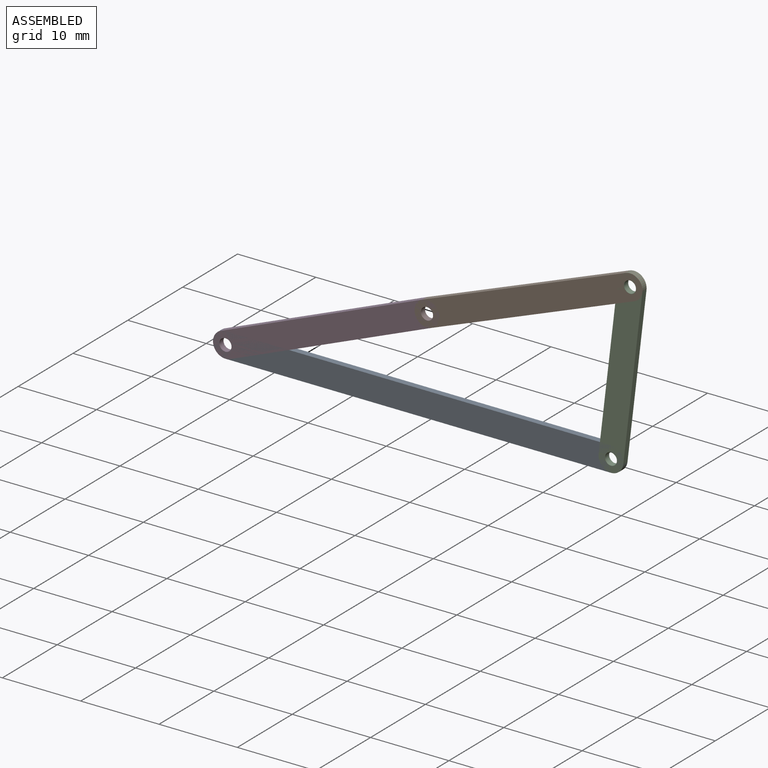
[diagram: assembled view]
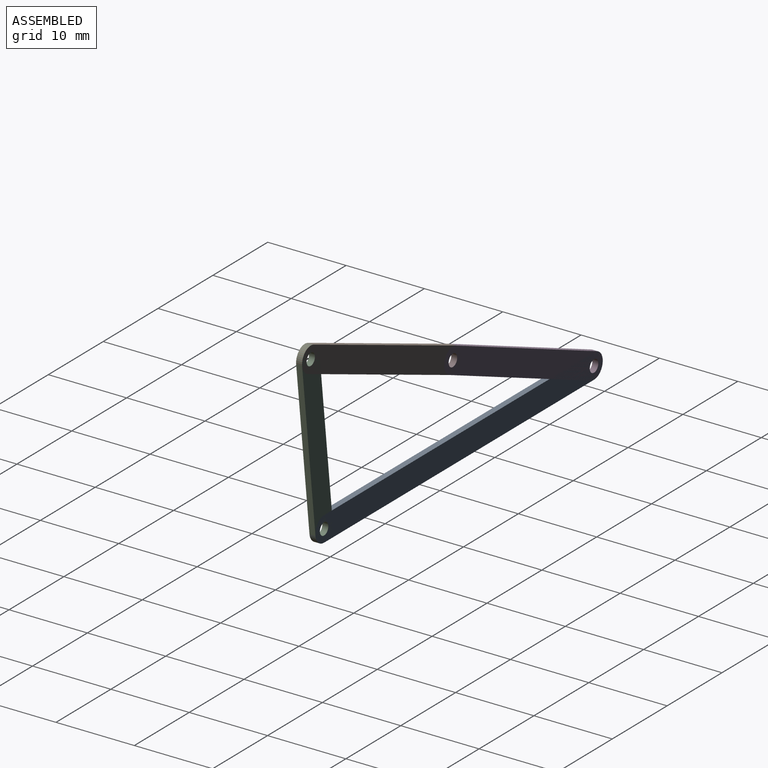
[diagram: assembled view, second angle]
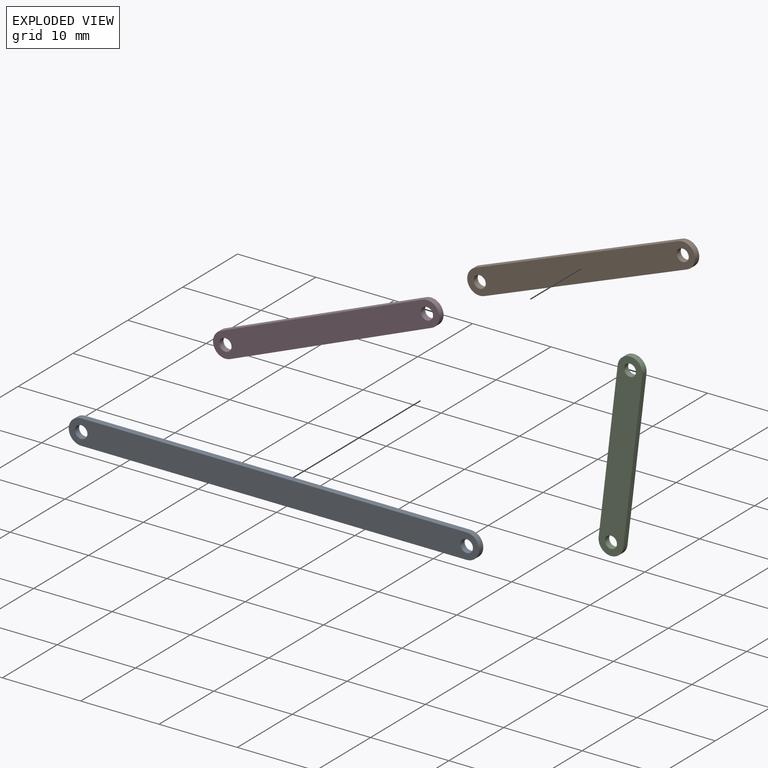
[diagram: exploded view]
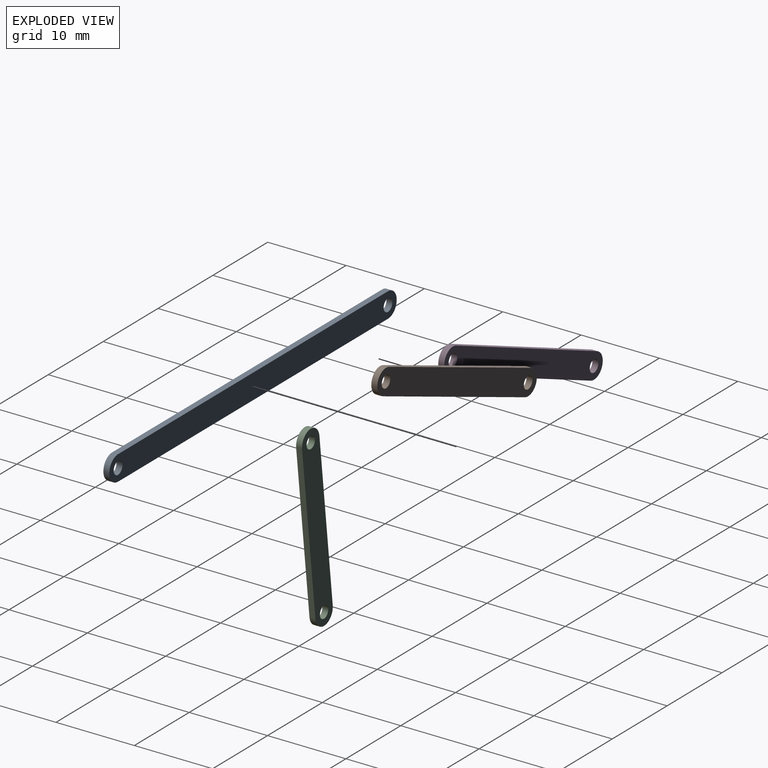
[diagram: exploded view, second angle]
ASSEMBLY  parts=4 mates=4
PART A: 8 faces, bbox 3.2x0.8x52.4 mm
  f0: cylinder r=1.59mm len=3.18mm, axis (0,1,0), area 3.8mm2, adj f1,f5,f6,f7
  f1: plane 49.21x0.76mm, normal (-1,0,0), area 37.5mm2, adj f0,f2,f6,f7
  f2: cylinder r=1.59mm len=3.18mm, axis (0,1,0), area 3.8mm2, adj f1,f5,f6,f7
  f3: cylinder r=0.79mm len=1.59mm, axis (0,1,0), area 3.8mm2, adj f6,f7
  f4: cylinder r=0.79mm len=1.59mm, axis (0,1,0), area 3.8mm2, adj f6,f7
  f5: plane 49.21x0.76mm, normal (1,0,0), area 37.5mm2, adj f0,f2,f6,f7
  f6: plane 52.39x3.18mm, normal (0,-1,0), area 160.2mm2, adj f0,f1,f2,f3,f4,f5
  f7: plane 52.39x3.18mm, normal (0,1,0), area 160.2mm2, adj f0,f1,f2,f3,f4,f5
PART B: 8 faces, bbox 3.2x0.8x31 mm
  f0: cylinder r=1.59mm len=3.18mm, axis (0,1,0), area 3.8mm2, adj f1,f5,f6,f7
  f1: plane 27.78x0.76mm, normal (-1,0,0), area 21.2mm2, adj f0,f2,f6,f7
  f2: cylinder r=1.59mm len=3.18mm, axis (0,1,0), area 3.8mm2, adj f1,f5,f6,f7
  f3: cylinder r=0.78mm len=1.56mm, axis (0,1,0), area 3.7mm2, adj f6,f7
  f4: cylinder r=0.78mm len=1.56mm, axis (0,1,0), area 3.7mm2, adj f6,f7
  f5: plane 27.78x0.76mm, normal (1,0,0), area 21.2mm2, adj f0,f2,f6,f7
  f6: plane 30.96x3.18mm, normal (0,-1,0), area 92.3mm2, adj f0,f1,f2,f3,f4,f5
  f7: plane 30.96x3.18mm, normal (0,1,0), area 92.3mm2, adj f0,f1,f2,f3,f4,f5
PART C: 8 faces, bbox 3.2x0.8x23.8 mm
  f0: cylinder r=1.59mm len=3.18mm, axis (0,1,0), area 3.8mm2, adj f1,f5,f6,f7
  f1: plane 20.64x0.76mm, normal (-1,0,0), area 15.7mm2, adj f0,f2,f6,f7
  f2: cylinder r=1.59mm len=3.18mm, axis (0,1,0), area 3.8mm2, adj f1,f5,f6,f7
  f3: cylinder r=0.76mm len=1.52mm, axis (0,1,0), area 3.6mm2, adj f6,f7
  f4: cylinder r=0.76mm len=1.52mm, axis (0,1,0), area 3.6mm2, adj f6,f7
  f5: plane 20.64x0.76mm, normal (1,0,0), area 15.7mm2, adj f0,f2,f6,f7
  f6: plane 23.81x3.18mm, normal (0,-1,0), area 69.8mm2, adj f0,f1,f2,f3,f4,f5
  f7: plane 23.81x3.18mm, normal (0,1,0), area 69.8mm2, adj f0,f1,f2,f3,f4,f5
PART D: same geometry as B
PLACE A rot(axis=(0,1,0),90deg) t=(-23.26,0,-0.05)mm fixed
PLACE B rot(axis=(0,-1,0),111.1deg) t=(28.38,0,20.45)mm
PLACE C rot(axis=(0,1,0),6.8deg) t=(25.95,0,-0.05)mm
PLACE D rot(axis=(0,1,0),67.8deg) t=(-23.26,0,-0.05)mm
MATE revolute B.f2 <-> C.f0  axis (0,-1,0) through (28.38,-0.38,20.45)mm
MATE revolute D.f2 <-> A.f2  axis (0,-1,0) through (-23.26,-0.38,-0.05)mm
MATE revolute B.f0 <-> D.f0  axis (0,-1,0) through (2.46,-0.38,10.44)mm
MATE revolute A.f0 <-> C.f2  axis (0,-1,0) through (25.95,-0.38,-0.05)mm
